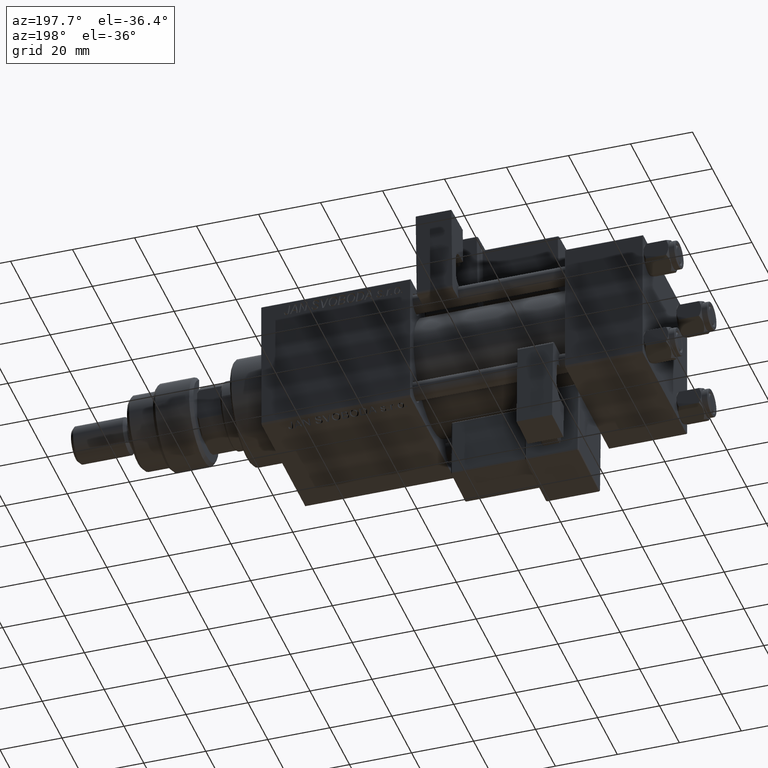
[diagram: clean part render]
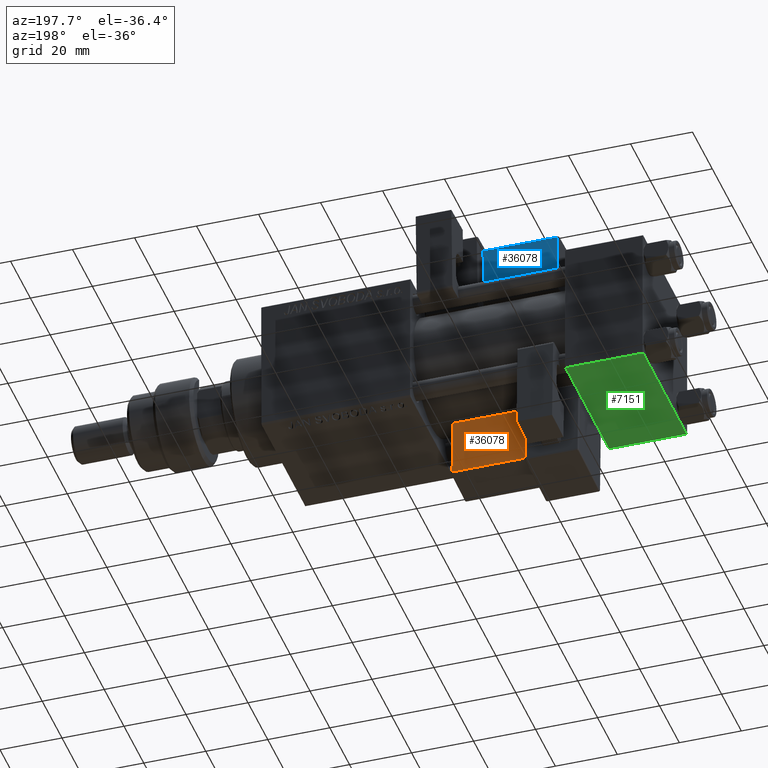
[diagram: same view with three faces highlighted in distinct colors, each labeled with its STEP entity id]
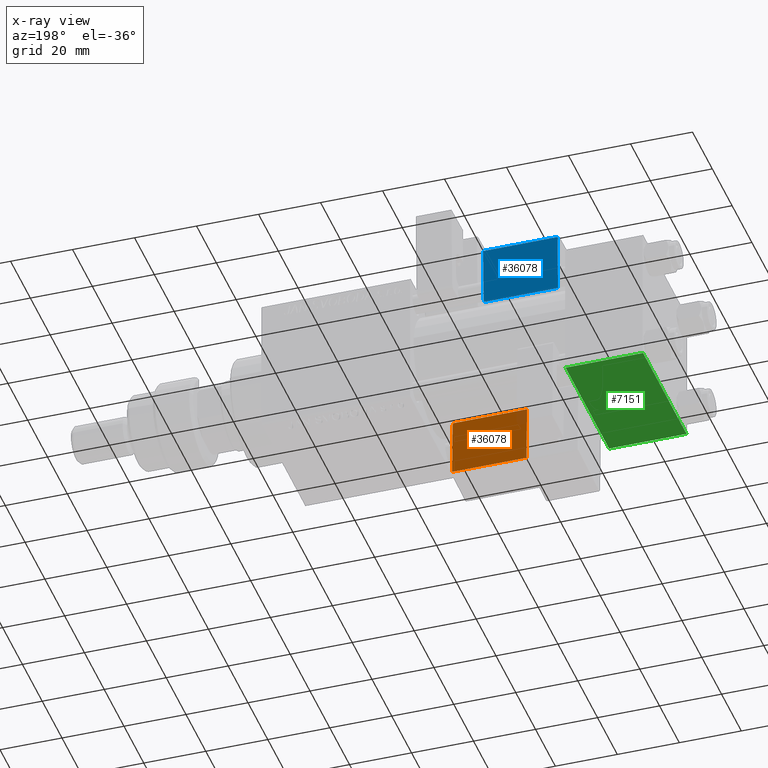
[diagram: x-ray of the same camera — body ghosted, the three highlighted faces saturated]
A machine part, auxiliary view with three faces highlighted in distinct colors.
The next image is the same camera in x-ray (body ghosted, the three faces saturated) — at least one of them is partly hidden behind the body in this view.
Their STEP definitions:

[orange] entity #36078 — the highlighted planar face has unit normal (0, -0.9994, -0.0353).
#3709 = DIRECTION ( 'NONE',  ( 0.000000000000000000, -0.000000000000000000, -1.000000000000000000 ) ) ;
#4112 = VECTOR ( 'NONE', #4916, 1000.000000000000000 ) ;
#4382 = LINE ( 'NONE', #41352, #4112 ) ;
#4916 = DIRECTION ( 'NONE',  ( 1.000000000000000000, -0.000000000000000000, 1.334402673828313339E-16 ) ) ;
#5986 = ORIENTED_EDGE ( 'NONE', *, *, #35087, .T. ) ;
#6985 = VECTOR ( 'NONE', #36536, 1000.000000000000000 ) ;
#8511 = LINE ( 'NONE', #21050, #16357 ) ;
#11202 = ORIENTED_EDGE ( 'NONE', *, *, #20262, .T. ) ;
#12133 = DIRECTION ( 'NONE',  ( 0.000000000000000000, -1.000000000000000000, 0.000000000000000000 ) ) ;
#13290 = EDGE_CURVE ( 'NONE', #14335, #52122, #4382, .T. ) ;
#14335 = VERTEX_POINT ( 'NONE', #16552 ) ;
#15949 = DIRECTION ( 'NONE',  ( -1.000000000000000000, 0.000000000000000000, -1.334402673828313339E-16 ) ) ;
#16081 = ORIENTED_EDGE ( 'NONE', *, *, #41392, .T. ) ;
#16357 = VECTOR ( 'NONE', #15949, 1000.000000000000000 ) ;
#16552 = CARTESIAN_POINT ( 'NONE',  ( 9.250000000000001776, -15.25000000000000000, 21.50000000000000000 ) ) ;
#17857 = EDGE_LOOP ( 'NONE', ( #11202, #16081, #21943, #5986 ) ) ;
#20262 = EDGE_CURVE ( 'NONE', #38146, #33690, #8511, .T. ) ;
#20747 = LINE ( 'NONE', #25365, #6985 ) ;
#21050 = CARTESIAN_POINT ( 'NONE',  ( 33.75000000000000000, -15.25000000000000000, 2.500000000000009326 ) ) ;
#21225 = CARTESIAN_POINT ( 'NONE',  ( 33.25000000000000000, -15.25000000000000000, 21.50000000000000355 ) ) ;
#21943 = ORIENTED_EDGE ( 'NONE', *, *, #13290, .T. ) ;
#24391 = CARTESIAN_POINT ( 'NONE',  ( 33.75000000000000000, -15.25000000000000000, 22.00000000000000711 ) ) ;
#25000 = AXIS2_PLACEMENT_3D ( 'NONE', #24391, #12133, #3709 ) ;
#25365 = CARTESIAN_POINT ( 'NONE',  ( 9.250000000000001776, -15.25000000000000000, 22.00000000000000355 ) ) ;
#28153 = CARTESIAN_POINT ( 'NONE',  ( 33.25000000000000000, -15.25000000000000000, 2.500000000000009326 ) ) ;
#30078 = LINE ( 'NONE', #38770, #51881 ) ;
#30343 = DIRECTION ( 'NONE',  ( 1.734723475976807341E-16, -0.000000000000000000, -1.000000000000000000 ) ) ;
#33592 = PLANE ( 'NONE',  #25000 ) ;
#33690 = VERTEX_POINT ( 'NONE', #43521 ) ;
#35087 = EDGE_CURVE ( 'NONE', #52122, #38146, #30078, .T. ) ;
#36078 = ADVANCED_FACE ( 'NONE', ( #53460 ), #33592, .F. ) ;
#36536 = DIRECTION ( 'NONE',  ( -1.334402673828313339E-16, 0.000000000000000000, 1.000000000000000000 ) ) ;
#38146 = VERTEX_POINT ( 'NONE', #28153 ) ;
#38770 = CARTESIAN_POINT ( 'NONE',  ( 33.25000000000000000, -15.25000000000000000, 2.000000000000008438 ) ) ;
#41352 = CARTESIAN_POINT ( 'NONE',  ( 33.75000000000000000, -15.25000000000000000, 21.50000000000000355 ) ) ;
#41392 = EDGE_CURVE ( 'NONE', #33690, #14335, #20747, .T. ) ;
#43521 = CARTESIAN_POINT ( 'NONE',  ( 9.250000000000003553, -15.25000000000000000, 2.500000000000005773 ) ) ;
#51881 = VECTOR ( 'NONE', #30343, 1000.000000000000000 ) ;
#52122 = VERTEX_POINT ( 'NONE', #21225 ) ;
#53460 = FACE_OUTER_BOUND ( 'NONE', #17857, .T. ) ;

[blue] entity #36078 — the highlighted planar face has unit normal (-0, -0.9994, 0.0353).
#3709 = DIRECTION ( 'NONE',  ( 0.000000000000000000, -0.000000000000000000, -1.000000000000000000 ) ) ;
#4112 = VECTOR ( 'NONE', #4916, 1000.000000000000000 ) ;
#4382 = LINE ( 'NONE', #41352, #4112 ) ;
#4916 = DIRECTION ( 'NONE',  ( 1.000000000000000000, -0.000000000000000000, 1.334402673828313339E-16 ) ) ;
#5986 = ORIENTED_EDGE ( 'NONE', *, *, #35087, .T. ) ;
#6985 = VECTOR ( 'NONE', #36536, 1000.000000000000000 ) ;
#8511 = LINE ( 'NONE', #21050, #16357 ) ;
#11202 = ORIENTED_EDGE ( 'NONE', *, *, #20262, .T. ) ;
#12133 = DIRECTION ( 'NONE',  ( 0.000000000000000000, -1.000000000000000000, 0.000000000000000000 ) ) ;
#13290 = EDGE_CURVE ( 'NONE', #14335, #52122, #4382, .T. ) ;
#14335 = VERTEX_POINT ( 'NONE', #16552 ) ;
#15949 = DIRECTION ( 'NONE',  ( -1.000000000000000000, 0.000000000000000000, -1.334402673828313339E-16 ) ) ;
#16081 = ORIENTED_EDGE ( 'NONE', *, *, #41392, .T. ) ;
#16357 = VECTOR ( 'NONE', #15949, 1000.000000000000000 ) ;
#16552 = CARTESIAN_POINT ( 'NONE',  ( 9.250000000000001776, -15.25000000000000000, 21.50000000000000000 ) ) ;
#17857 = EDGE_LOOP ( 'NONE', ( #11202, #16081, #21943, #5986 ) ) ;
#20262 = EDGE_CURVE ( 'NONE', #38146, #33690, #8511, .T. ) ;
#20747 = LINE ( 'NONE', #25365, #6985 ) ;
#21050 = CARTESIAN_POINT ( 'NONE',  ( 33.75000000000000000, -15.25000000000000000, 2.500000000000009326 ) ) ;
#21225 = CARTESIAN_POINT ( 'NONE',  ( 33.25000000000000000, -15.25000000000000000, 21.50000000000000355 ) ) ;
#21943 = ORIENTED_EDGE ( 'NONE', *, *, #13290, .T. ) ;
#24391 = CARTESIAN_POINT ( 'NONE',  ( 33.75000000000000000, -15.25000000000000000, 22.00000000000000711 ) ) ;
#25000 = AXIS2_PLACEMENT_3D ( 'NONE', #24391, #12133, #3709 ) ;
#25365 = CARTESIAN_POINT ( 'NONE',  ( 9.250000000000001776, -15.25000000000000000, 22.00000000000000355 ) ) ;
#28153 = CARTESIAN_POINT ( 'NONE',  ( 33.25000000000000000, -15.25000000000000000, 2.500000000000009326 ) ) ;
#30078 = LINE ( 'NONE', #38770, #51881 ) ;
#30343 = DIRECTION ( 'NONE',  ( 1.734723475976807341E-16, -0.000000000000000000, -1.000000000000000000 ) ) ;
#33592 = PLANE ( 'NONE',  #25000 ) ;
#33690 = VERTEX_POINT ( 'NONE', #43521 ) ;
#35087 = EDGE_CURVE ( 'NONE', #52122, #38146, #30078, .T. ) ;
#36078 = ADVANCED_FACE ( 'NONE', ( #53460 ), #33592, .F. ) ;
#36536 = DIRECTION ( 'NONE',  ( -1.334402673828313339E-16, 0.000000000000000000, 1.000000000000000000 ) ) ;
#38146 = VERTEX_POINT ( 'NONE', #28153 ) ;
#38770 = CARTESIAN_POINT ( 'NONE',  ( 33.25000000000000000, -15.25000000000000000, 2.000000000000008438 ) ) ;
#41352 = CARTESIAN_POINT ( 'NONE',  ( 33.75000000000000000, -15.25000000000000000, 21.50000000000000355 ) ) ;
#41392 = EDGE_CURVE ( 'NONE', #33690, #14335, #20747, .T. ) ;
#43521 = CARTESIAN_POINT ( 'NONE',  ( 9.250000000000003553, -15.25000000000000000, 2.500000000000005773 ) ) ;
#51881 = VECTOR ( 'NONE', #30343, 1000.000000000000000 ) ;
#52122 = VERTEX_POINT ( 'NONE', #21225 ) ;
#53460 = FACE_OUTER_BOUND ( 'NONE', #17857, .T. ) ;

[green] entity #7151 — the highlighted planar face has unit normal (0, 0, -1).
#3320 = DIRECTION ( 'NONE',  ( -1.000000000000000000, 0.000000000000000000, 0.000000000000000000 ) ) ;
#3728 = CARTESIAN_POINT ( 'NONE',  ( 25.00000000000000000, -21.99999999999997158, -22.50000000000000711 ) ) ;
#3996 = VERTEX_POINT ( 'NONE', #13300 ) ;
#5380 = CARTESIAN_POINT ( 'NONE',  ( 0.000000000000000000, 22.50000000000000000, -22.49999999999999645 ) ) ;
#7050 = VERTEX_POINT ( 'NONE', #41372 ) ;
#7151 = ADVANCED_FACE ( 'NONE', ( #20212 ), #29155, .T. ) ;
#7990 = CARTESIAN_POINT ( 'NONE',  ( 25.00000000000000000, 22.50000000000000000, -22.49999999999999645 ) ) ;
#8119 = DIRECTION ( 'NONE',  ( 1.000000000000000000, 0.000000000000000000, 0.000000000000000000 ) ) ;
#8207 = CARTESIAN_POINT ( 'NONE',  ( 25.00000000000000000, 22.50000000000000000, -22.49999999999999645 ) ) ;
#10848 = ORIENTED_EDGE ( 'NONE', *, *, #36515, .T. ) ;
#11204 = VECTOR ( 'NONE', #3320, 1000.000000000000000 ) ;
#13300 = CARTESIAN_POINT ( 'NONE',  ( 0.000000000000000000, -21.99999999999997158, -22.50000000000000711 ) ) ;
#13789 = DIRECTION ( 'NONE',  ( 0.000000000000000000, -1.000000000000000000, -2.312964634635742957E-16 ) ) ;
#17183 = VECTOR ( 'NONE', #13789, 1000.000000000000000 ) ;
#20212 = FACE_OUTER_BOUND ( 'NONE', #26884, .T. ) ;
#20486 = EDGE_CURVE ( 'NONE', #39801, #3996, #48467, .T. ) ;
#20941 = ORIENTED_EDGE ( 'NONE', *, *, #35965, .F. ) ;
#26884 = EDGE_LOOP ( 'NONE', ( #20941, #44859, #10848, #49982 ) ) ;
#27179 = EDGE_CURVE ( 'NONE', #7050, #49672, #49475, .T. ) ;
#28401 = DIRECTION ( 'NONE',  ( 0.000000000000000000, -1.000000000000000000, -2.312964634635742957E-16 ) ) ;
#29155 = PLANE ( 'NONE',  #32544 ) ;
#32438 = DIRECTION ( 'NONE',  ( 0.000000000000000000, 2.312964634635742957E-16, -1.000000000000000000 ) ) ;
#32544 = AXIS2_PLACEMENT_3D ( 'NONE', #8207, #32438, #45717 ) ;
#35965 = EDGE_CURVE ( 'NONE', #7050, #3996, #42613, .T. ) ;
#36515 = EDGE_CURVE ( 'NONE', #49672, #39801, #40902, .T. ) ;
#39801 = VERTEX_POINT ( 'NONE', #3728 ) ;
#40902 = LINE ( 'NONE', #7990, #47578 ) ;
#41038 = CARTESIAN_POINT ( 'NONE',  ( 25.00000000000000000, 21.99999999999999289, -22.49999999999999645 ) ) ;
#41372 = CARTESIAN_POINT ( 'NONE',  ( 0.000000000000000000, 21.99999999999999289, -22.49999999999999645 ) ) ;
#42613 = LINE ( 'NONE', #5380, #17183 ) ;
#44859 = ORIENTED_EDGE ( 'NONE', *, *, #27179, .T. ) ;
#45717 = DIRECTION ( 'NONE',  ( 0.000000000000000000, 1.000000000000000000, 2.312964634635742957E-16 ) ) ;
#47578 = VECTOR ( 'NONE', #28401, 1000.000000000000000 ) ;
#48467 = LINE ( 'NONE', #48741, #11204 ) ;
#48741 = CARTESIAN_POINT ( 'NONE',  ( 0.000000000000000000, -21.99999999999998579, -22.50000000000000711 ) ) ;
#49475 = LINE ( 'NONE', #41038, #50483 ) ;
#49672 = VERTEX_POINT ( 'NONE', #50937 ) ;
#49982 = ORIENTED_EDGE ( 'NONE', *, *, #20486, .T. ) ;
#50483 = VECTOR ( 'NONE', #8119, 1000.000000000000000 ) ;
#50937 = CARTESIAN_POINT ( 'NONE',  ( 25.00000000000000000, 21.99999999999999289, -22.49999999999999645 ) ) ;